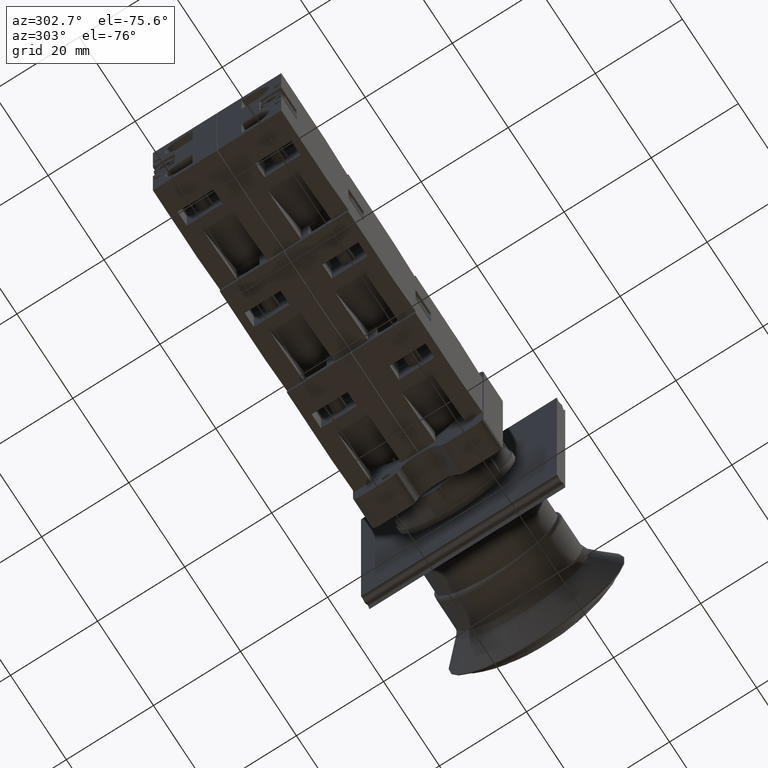
[diagram: clean part render]
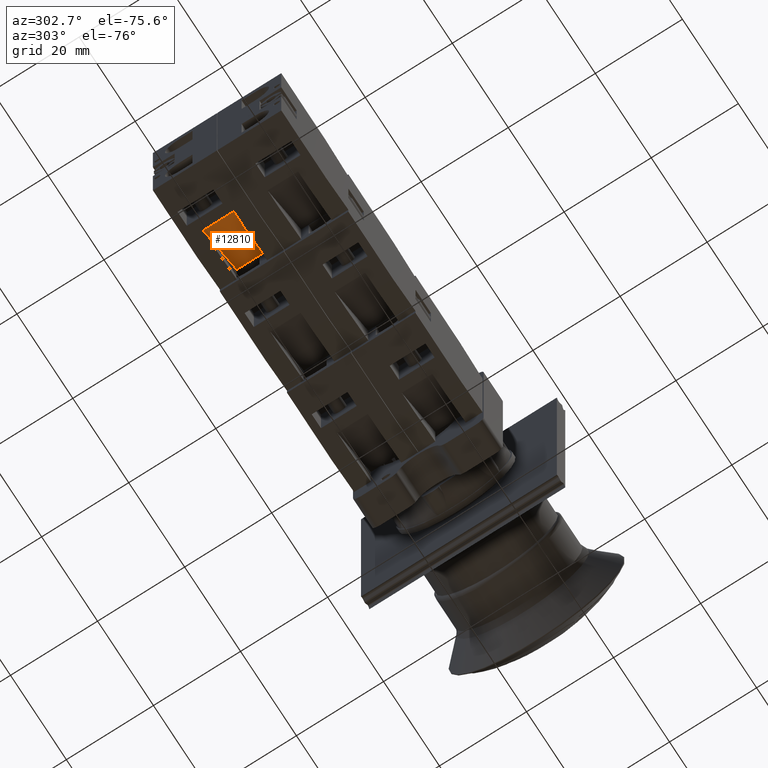
[diagram: same view with one face highlighted and labeled with its STEP entity id]
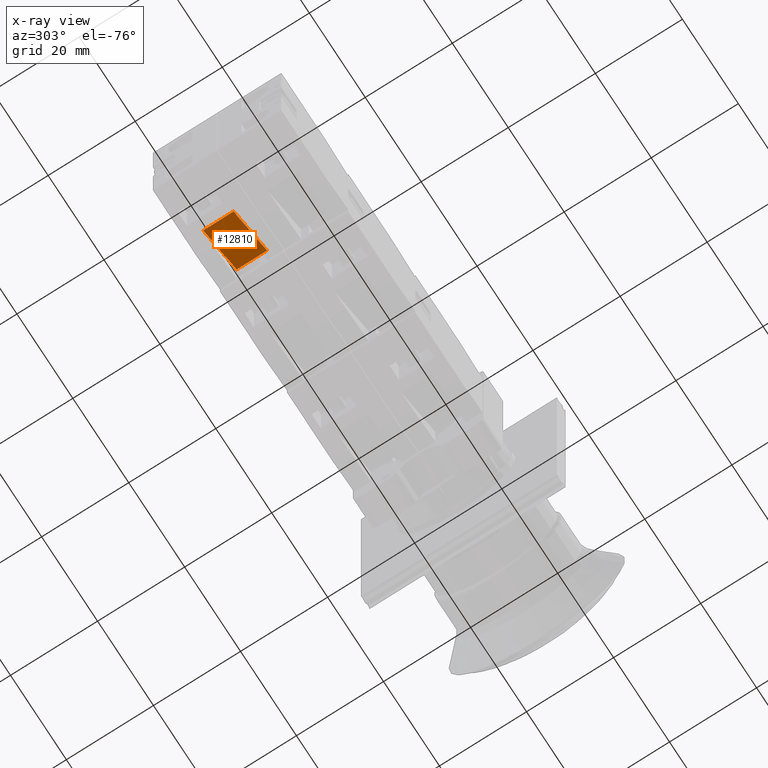
[diagram: x-ray of the same camera — body ghosted, the highlighted face saturated]
A machine part, auxiliary view. The second image highlights one B-rep face of the part: STEP entity #12810.
The next image is the same camera in x-ray: the body ghosted, the highlighted face saturated — about 0% of this face is hidden behind the body in this view.
In plain terms, the highlighted planar face has unit normal (-0.6, -0, 0.8).
Its self-contained STEP definition (entity closure, byte-faithful):
#12755=CARTESIAN_POINT('',(-24.936741828918464,-0.202926676720378,10.850000000000000));
#12756=VERTEX_POINT('',#12755);
#12763=CARTESIAN_POINT('',(-15.936741828918466,11.797073323279626,10.850000000000000));
#12764=VERTEX_POINT('',#12763);
#12765=CARTESIAN_POINT('',(-24.936741828918464,-0.202926676720378,10.850000000000000));
#12766=DIRECTION('',(0.600000000000000,0.800000000000000,0.0));
#12767=VECTOR('',#12766,15.000000000000002);
#12768=LINE('',#12765,#12767);
#12769=EDGE_CURVE('',#12756,#12764,#12768,.T.);
#12780=CARTESIAN_POINT('',(-15.936741828918466,11.797073323279626,7.350000000000000));
#12781=DIRECTION('',(-0.800000000000000,0.600000000000000,0.0));
#12782=DIRECTION('',(0.0,0.0,1.0));
#12783=AXIS2_PLACEMENT_3D('',#12780,#12781,#12782);
#12784=PLANE('',#12783);
#12785=CARTESIAN_POINT('',(-15.936741828918466,11.797073323279626,3.850000000000001));
#12786=VERTEX_POINT('',#12785);
#12787=CARTESIAN_POINT('',(-24.936741828918464,-0.202926676720378,3.850000000000001));
#12788=VERTEX_POINT('',#12787);
#12789=CARTESIAN_POINT('',(-15.936741828918466,11.797073323279626,3.850000000000001));
#12790=DIRECTION('',(-0.600000000000000,-0.800000000000000,0.0));
#12791=VECTOR('',#12790,15.000000000000002);
#12792=LINE('',#12789,#12791);
#12793=EDGE_CURVE('',#12786,#12788,#12792,.T.);
#12794=ORIENTED_EDGE('',*,*,#12793,.F.);
#12795=CARTESIAN_POINT('',(-15.936741828918466,11.797073323279626,10.850000000000000));
#12796=DIRECTION('',(0.0,0.0,-1.0));
#12797=VECTOR('',#12796,6.999999999999999);
#12798=LINE('',#12795,#12797);
#12799=EDGE_CURVE('',#12764,#12786,#12798,.T.);
#12800=ORIENTED_EDGE('',*,*,#12799,.F.);
#12801=ORIENTED_EDGE('',*,*,#12769,.F.);
#12802=CARTESIAN_POINT('',(-24.936741828918464,-0.202926676720378,3.850000000000001));
#12803=DIRECTION('',(0.0,0.0,1.0));
#12804=VECTOR('',#12803,6.999999999999999);
#12805=LINE('',#12802,#12804);
#12806=EDGE_CURVE('',#12788,#12756,#12805,.T.);
#12807=ORIENTED_EDGE('',*,*,#12806,.F.);
#12808=EDGE_LOOP('',(#12794,#12800,#12801,#12807));
#12809=FACE_OUTER_BOUND('',#12808,.T.);
#12810=ADVANCED_FACE('',(#12809),#12784,.F.);